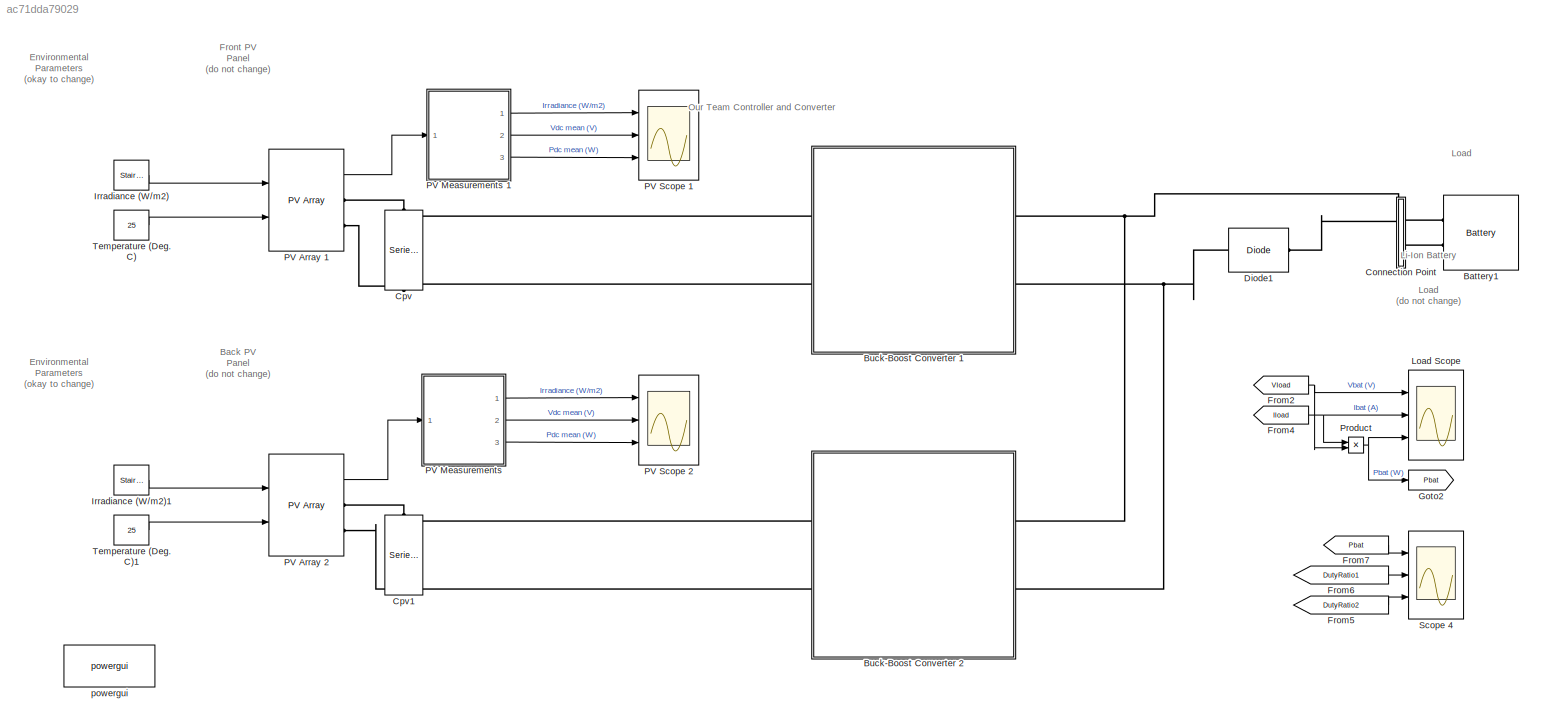
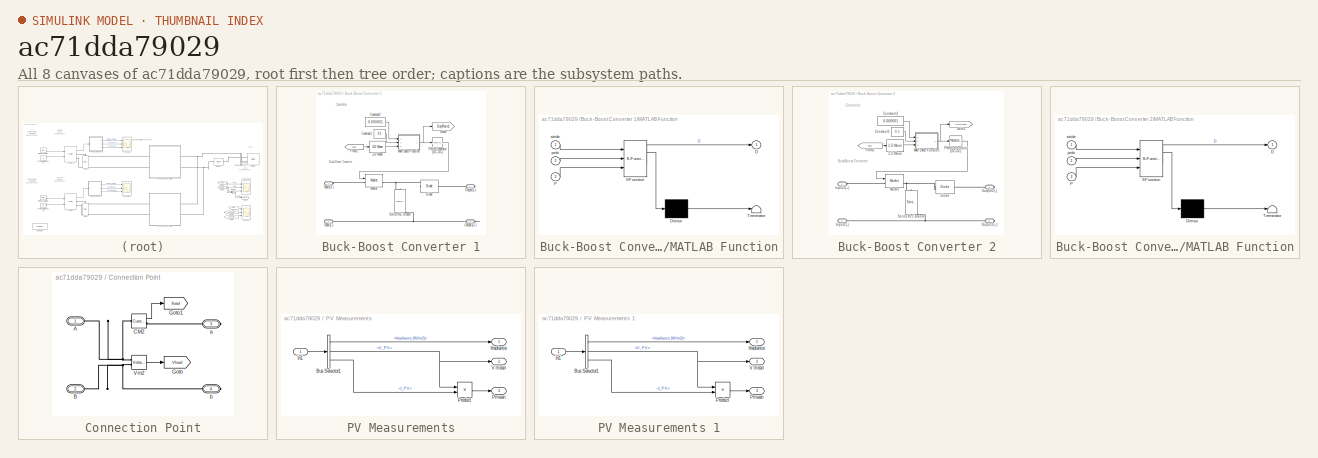
[diagram: thumbnail index - all 8 canvases of the model, root first then tree order]
MODEL slx_ac71dda79029
KIND model
CONFIG AbsTol = auto
CONFIG EnableMultiTasking = off
CONFIG FixedStep = auto
CONFIG InitFcn = %\nFc=3780;                          % PWM Carrier frequency (Hz) \nTs_Power=1/Fc/200;         % Simscape Power Systems sample time (s)\nTs_Control=20*Ts_Power;  % Inverter Control system sample time (s)
CONFIG MaxStep = auto
CONFIG MinStep = auto
CONFIG PreLoadFcn = %\nFc=3780;                          % PWM Carrier frequency (Hz) \nTs_Power=1/Fc/200;         % Simscape Power Systems sample time (s)\nTs_Control=20*Ts_Power;  % Inverter Control system sample time (s)
CONFIG RelTol = 1e-3
CONFIG SampleTimeConstraint = Unconstrained
CONFIG SolverName = FixedStepDiscrete
CONFIG StartTime = 0.0
CONFIG StopTime = 0.25
BLOCK [Reference] Battery1  REF=spsBatteryLib/Battery
  Ports = [0, 1, 0, 0, 0, 2]
  SourceBlock = spsBatteryLib/Battery
  SourceProductBaseCode = PS
  SourceType = Battery
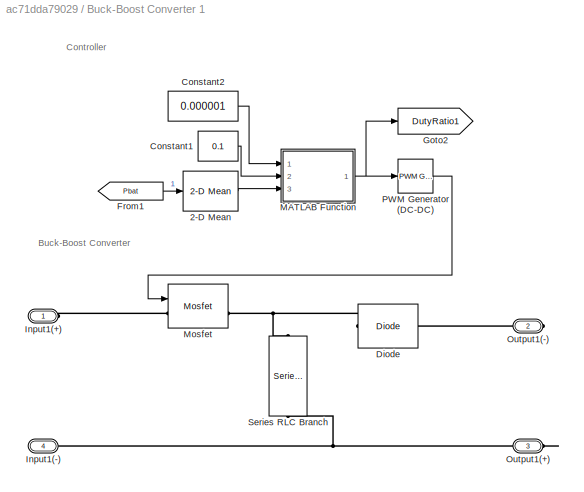
BLOCK [SubSystem] Buck-Boost Converter 1
  Ports = [0, 0, 0, 0, 0, 2, 2]
  RequestExecContextInheritance = off
BLOCK [Reference] Buck-Boost Converter 1/2-D Mean  REF=visionstatistics/2-D Mean
  Ports = [1, 1]
  SourceBlock = visionstatistics/2-D Mean
  SourceProductBaseCode = VP
  SourceType = 2-D Mean
  UserDataPersistent = on
BLOCK [Constant] Buck-Boost Converter 1/Constant1
  Value = 0.1
BLOCK [Constant] Buck-Boost Converter 1/Constant2
  Value = 0.000001
BLOCK [Reference] Buck-Boost Converter 1/Diode  REF=spsDiodeLib/Diode
  NameLocation = top
  Ports = [0, 1, 0, 0, 0, 1, 1]
  SourceBlock = spsDiodeLib/Diode
  SourceProductBaseCode = PS
  SourceType = Diode
BLOCK [From] Buck-Boost Converter 1/From1
  CloseFcn = tagdialog Close
  GotoTag = Pbat
  TagVisibility = global
BLOCK [Goto] Buck-Boost Converter 1/Goto2
  GotoTag = DutyRatio1
  TagVisibility = global
BLOCK [PMIOPort] Buck-Boost Converter 1/Input1(+)
  Side = Left
BLOCK [PMIOPort] Buck-Boost Converter 1/Input1(-)
  Port = 4
  Side = Left
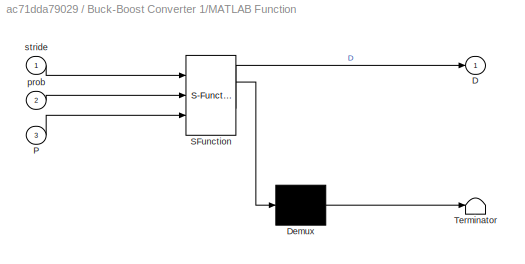
BLOCK [SubSystem] Buck-Boost Converter 1/MATLAB Function
  ErrorFcn = Stateflow.Translate.translate
  PermitHierarchicalResolution = ExplicitOnly
  Ports = [3, 1]
  RequestExecContextInheritance = off
  SFBlockType = MATLAB Function
  TreatAsAtomicUnit = on
BLOCK [Demux] Buck-Boost Converter 1/MATLAB Function/ Demux 
  Outputs = 1
  Ports = [1, 1]
BLOCK [S-Function] Buck-Boost Converter 1/MATLAB Function/ SFunction 
  EnableBusSupport = off
  FunctionName = sf_sfun
  PortCounts = [3 2]
  Ports = [3, 2]
  SFcnIsStateOwnerBlock = off
  SFunctionDeploymentMode = off
  Tag = Stateflow S-Function 2
BLOCK [Terminator] Buck-Boost Converter 1/MATLAB Function/ Terminator 
BLOCK [Outport] Buck-Boost Converter 1/MATLAB Function/D
BLOCK [Inport] Buck-Boost Converter 1/MATLAB Function/P
  Port = 3
BLOCK [Inport] Buck-Boost Converter 1/MATLAB Function/prob
  Port = 2
BLOCK [Inport] Buck-Boost Converter 1/MATLAB Function/stride
BLOCK [Reference] Buck-Boost Converter 1/Mosfet  REF=spsMosfetLib/Mosfet
  Ports = [1, 1, 0, 0, 0, 1, 1]
  SourceBlock = spsMosfetLib/Mosfet
  SourceProductBaseCode = PS
  SourceType = Mosfet
BLOCK [PMIOPort] Buck-Boost Converter 1/Output1(+)
  Port = 3
  Side = Right
BLOCK [PMIOPort] Buck-Boost Converter 1/Output1(-)
  Port = 2
  Side = Right
BLOCK [Reference] Buck-Boost Converter 1/PWM Generator (DC-DC)  REF=spsPWMGeneratorDCDCLib/PWM Generator
(DC-DC)
  NameLocation = top
  Ports = [1, 1]
  SourceBlock = spsPWMGeneratorDCDCLib/PWM Generator\n(DC-DC)
  SourceProductBaseCode = PS
  SourceType = PWM Generator (DC-DC)
BLOCK [Reference] Buck-Boost Converter 1/Series RLC Branch  REF=spsSeriesRLCBranchLib/Series RLC Branch
  NameLocation = left
  Ports = [0, 0, 0, 0, 0, 1, 1]
  SourceBlock = spsSeriesRLCBranchLib/Series RLC Branch
  SourceProductBaseCode = PS
  SourceType = Series RLC Branch
BLOCK [SubSystem] Buck-Boost Converter 2
  Ports = [0, 0, 0, 0, 0, 2, 2]
  RequestExecContextInheritance = off
BLOCK [Reference] Buck-Boost Converter 2/2-D Mean  REF=visionstatistics/2-D Mean
  Ports = [1, 1]
  SourceBlock = visionstatistics/2-D Mean
  SourceProductBaseCode = VP
  SourceType = 2-D Mean
  UserDataPersistent = on
BLOCK [Constant] Buck-Boost Converter 2/Constant2
  Value = 0.1
BLOCK [Constant] Buck-Boost Converter 2/Constant3
  Value = 0.000001
BLOCK [Reference] Buck-Boost Converter 2/Diode  REF=spsDiodeLib/Diode
  NameLocation = top
  Ports = [0, 1, 0, 0, 0, 1, 1]
  SourceBlock = spsDiodeLib/Diode
  SourceProductBaseCode = PS
  SourceType = Diode
BLOCK [From] Buck-Boost Converter 2/From1
  CloseFcn = tagdialog Close
  GotoTag = Pbat
  TagVisibility = global
BLOCK [Goto] Buck-Boost Converter 2/Goto2
  GotoTag = DutyRatio2
  TagVisibility = global
BLOCK [PMIOPort] Buck-Boost Converter 2/Input2(+)
  Side = Left
BLOCK [PMIOPort] Buck-Boost Converter 2/Input2(-)
  Port = 4
  Side = Left
BLOCK [SubSystem] Buck-Boost Converter 2/MATLAB Function
  ErrorFcn = Stateflow.Translate.translate
  PermitHierarchicalResolution = ExplicitOnly
  Ports = [3, 1]
  RequestExecContextInheritance = off
  SFBlockType = MATLAB Function
  TreatAsAtomicUnit = on
BLOCK [Demux] Buck-Boost Converter 2/MATLAB Function/ Demux 
  Outputs = 1
  Ports = [1, 1]
BLOCK [S-Function] Buck-Boost Converter 2/MATLAB Function/ SFunction 
  EnableBusSupport = off
  FunctionName = sf_sfun
  PortCounts = [3 2]
  Ports = [3, 2]
  SFcnIsStateOwnerBlock = off
  SFunctionDeploymentMode = off
  Tag = Stateflow S-Function 1
BLOCK [Terminator] Buck-Boost Converter 2/MATLAB Function/ Terminator 
BLOCK [Outport] Buck-Boost Converter 2/MATLAB Function/D
BLOCK [Inport] Buck-Boost Converter 2/MATLAB Function/P
  Port = 3
BLOCK [Inport] Buck-Boost Converter 2/MATLAB Function/prob
  Port = 2
BLOCK [Inport] Buck-Boost Converter 2/MATLAB Function/stride
BLOCK [Reference] Buck-Boost Converter 2/Mosfet  REF=spsMosfetLib/Mosfet
  Ports = [1, 1, 0, 0, 0, 1, 1]
  SourceBlock = spsMosfetLib/Mosfet
  SourceProductBaseCode = PS
  SourceType = Mosfet
BLOCK [PMIOPort] Buck-Boost Converter 2/Output2(+)
  Port = 3
  Side = Right
BLOCK [PMIOPort] Buck-Boost Converter 2/Output2(-)
  Port = 2
  Side = Right
BLOCK [Reference] Buck-Boost Converter 2/PWM Generator (DC-DC)  REF=spsPWMGeneratorDCDCLib/PWM Generator
(DC-DC)
  NameLocation = top
  Ports = [1, 1]
  SourceBlock = spsPWMGeneratorDCDCLib/PWM Generator\n(DC-DC)
  SourceProductBaseCode = PS
  SourceType = PWM Generator (DC-DC)
BLOCK [Reference] Buck-Boost Converter 2/Series RLC Branch  REF=spsSeriesRLCBranchLib/Series RLC Branch
  NameLocation = left
  Ports = [0, 0, 0, 0, 0, 1, 1]
  SourceBlock = spsSeriesRLCBranchLib/Series RLC Branch
  SourceProductBaseCode = PS
  SourceType = Series RLC Branch
BLOCK [SubSystem] Connection Point
  Ports = [0, 0, 0, 0, 0, 2, 2]
  RequestExecContextInheritance = off
BLOCK [PMIOPort] Connection Point/A
  Side = Left
BLOCK [PMIOPort] Connection Point/B
  Port = 2
  Side = Left
BLOCK [Reference] Connection Point/CM2  REF=spsCurrentMeasurementLib/Current Measurement
  Ports = [0, 1, 0, 0, 0, 1, 1]
  SourceBlock = spsCurrentMeasurementLib/Current Measurement
  SourceProductBaseCode = PS
  SourceType = Current Measurement
  UserDataPersistent = on
BLOCK [Goto] Connection Point/Goto
  GotoTag = Vload
  TagVisibility = global
BLOCK [Goto] Connection Point/Goto1
  GotoTag = Iload
  TagVisibility = global
BLOCK [Reference] Connection Point/Vm2  REF=spsVoltageMeasurementLib/Voltage Measurement
  Ports = [0, 1, 0, 0, 0, 2]
  SourceBlock = spsVoltageMeasurementLib/Voltage Measurement
  SourceProductBaseCode = PS
  SourceType = Voltage Measurement
  UserDataPersistent = on
BLOCK [PMIOPort] Connection Point/a
  Port = 3
  Side = Right
BLOCK [PMIOPort] Connection Point/b
  Port = 4
  Side = Right
BLOCK [Reference] Cpv  REF=spsSeriesRLCBranchLib/Series RLC Branch
  NameLocation = right
  Ports = [0, 0, 0, 0, 0, 1, 1]
  SourceBlock = spsSeriesRLCBranchLib/Series RLC Branch
  SourceProductBaseCode = PS
  SourceType = Series RLC Branch
BLOCK [Reference] Cpv1  REF=spsSeriesRLCBranchLib/Series RLC Branch
  NameLocation = right
  Ports = [0, 0, 0, 0, 0, 1, 1]
  SourceBlock = spsSeriesRLCBranchLib/Series RLC Branch
  SourceProductBaseCode = PS
  SourceType = Series RLC Branch
BLOCK [Reference] Diode1  REF=spsDiodeLib/Diode
  Ports = [0, 0, 0, 0, 0, 1, 1]
  SourceBlock = spsDiodeLib/Diode
  SourceProductBaseCode = PS
  SourceType = Diode
BLOCK [From] From2
  CloseFcn = tagdialog Close
  GotoTag = Vload
  TagVisibility = global
BLOCK [From] From4
  CloseFcn = tagdialog Close
  GotoTag = Iload
  TagVisibility = global
BLOCK [From] From5
  CloseFcn = tagdialog Close
  GotoTag = DutyRatio2
  TagVisibility = global
BLOCK [From] From6
  CloseFcn = tagdialog Close
  GotoTag = DutyRatio1
  TagVisibility = global
BLOCK [From] From7
  CloseFcn = tagdialog Close
  GotoTag = Pbat
  TagVisibility = global
BLOCK [Goto] Goto2
  GotoTag = Pbat
  TagVisibility = global
BLOCK [Reference] Irradiance (W//m2)  REF=spsStairGeneratorLib/Stair
Generator
  NameLocation = top
  Ports = [0, 1]
  SourceBlock = spsStairGeneratorLib/Stair\nGenerator
  SourceProductBaseCode = PS
  SourceType = Stair Generator
BLOCK [Reference] Irradiance (W//m2)1  REF=spsStairGeneratorLib/Stair
Generator
  NameLocation = top
  Ports = [0, 1]
  SourceBlock = spsStairGeneratorLib/Stair\nGenerator
  SourceProductBaseCode = PS
  SourceType = Stair Generator
BLOCK [Scope] Load Scope
  Floating = off
  NameLocation = top
  NumInputPorts = 3
  Ports = [3]
  ScopeSpecificationString = Simulink.scopes.TimeScopeBlockCfg('CurrentConfiguration', extmgr.ConfigurationSet(extmgr.Configuration('Core','General UI',true,'FigureColor',[0.501960784313725 0.501960784313725 0.501960784313725]),extmgr.Configuration('Core','Source UI',true),extmgr.Configuration('Sources','WiredSimulink',true,'DataLoggingVariableName','VIgrid','DataLoggingSaveFormat','StructureWithTime','DataLoggingDecimation',...<+3532ch>
BLOCK [Reference] PV Array 1  REF=spsPVArrayLib/PV Array
  AttributesFormatString = %<ModuleName>\n%<Nser>-module string\n%<Npar> parallel strings
  Ports = [2, 1, 0, 0, 0, 0, 2]
  SourceBlock = spsPVArrayLib/PV Array
  SourceProductBaseCode = PS
  SourceType = PV array
BLOCK [Reference] PV Array 2  REF=spsPVArrayLib/PV Array
  AttributesFormatString = %<ModuleName>\n%<Nser>-module string\n%<Npar> parallel strings
  Ports = [2, 1, 0, 0, 0, 0, 2]
  SourceBlock = spsPVArrayLib/PV Array
  SourceProductBaseCode = PS
  SourceType = PV array
BLOCK [SubSystem] PV Measurements
  Ports = [1, 3]
  RequestExecContextInheritance = off
BLOCK [SubSystem] PV Measurements 1
  Ports = [1, 3]
  RequestExecContextInheritance = off
BLOCK [BusSelector] PV Measurements 1/Bus Selector1
  OutputSignals = Irradiance (W/m2),V_PV,I_PV
  Ports = [1, 3]
BLOCK [Inport] PV Measurements 1/In1
BLOCK [Outport] PV Measurements 1/Irradiance
  VectorParamsAs1DForOutWhenUnconnected = off
BLOCK [Outport] PV Measurements 1/Pmean
  Port = 3
  VectorParamsAs1DForOutWhenUnconnected = off
BLOCK [Product] PV Measurements 1/Product
  Ports = [2, 1]
BLOCK [Outport] PV Measurements 1/V mean
  Port = 2
  VectorParamsAs1DForOutWhenUnconnected = off
BLOCK [BusSelector] PV Measurements/Bus Selector1
  OutputSignals = Irradiance (W/m2),V_PV,I_PV
  Ports = [1, 3]
BLOCK [Inport] PV Measurements/In1
BLOCK [Outport] PV Measurements/Irradiance
  VectorParamsAs1DForOutWhenUnconnected = off
BLOCK [Outport] PV Measurements/Pmean
  Port = 3
  VectorParamsAs1DForOutWhenUnconnected = off
BLOCK [Product] PV Measurements/Product
  Ports = [2, 1]
BLOCK [Outport] PV Measurements/V mean
  Port = 2
  VectorParamsAs1DForOutWhenUnconnected = off
BLOCK [Scope] PV Scope 1
  Floating = off
  NameLocation = top
  NumInputPorts = 3
  Ports = [3]
  ScopeSpecificationString = Simulink.scopes.TimeScopeBlockCfg('CurrentConfiguration', extmgr.ConfigurationSet(extmgr.Configuration('Core','General UI',true,'FigureColor',[0.501960784313725 0.501960784313725 0.501960784313725]),extmgr.Configuration('Core','Source UI',true),extmgr.Configuration('Sources','WiredSimulink',true,'DataLoggingVariableName','ScopeData1','DataLoggingSaveFormat','StructureWithTime','DataLoggingDecimati...<+3647ch>
BLOCK [Scope] PV Scope 2
  Floating = off
  NameLocation = top
  NumInputPorts = 3
  Ports = [3]
  ScopeSpecificationString = Simulink.scopes.TimeScopeBlockCfg('CurrentConfiguration', extmgr.ConfigurationSet(extmgr.Configuration('Core','General UI',true,'FigureColor',[0.501960784313725 0.501960784313725 0.501960784313725]),extmgr.Configuration('Core','Source UI',true),extmgr.Configuration('Sources','WiredSimulink',true,'DataLoggingVariableName','ScopeData1','DataLoggingSaveFormat','StructureWithTime','DataLoggingDecimati...<+3642ch>
BLOCK [Product] Product
  Ports = [2, 1]
BLOCK [Scope] Scope 4
  Floating = off
  NameLocation = top
  NumInputPorts = 3
  Ports = [3]
  ScopeSpecificationString = Simulink.scopes.TimeScopeBlockCfg('CurrentConfiguration', extmgr.ConfigurationSet(extmgr.Configuration('Core','General UI',true,'FigureColor',[0.501960784313725 0.501960784313725 0.501960784313725]),extmgr.Configuration('Core','Source UI',true),extmgr.Configuration('Sources','WiredSimulink',true,'DataLoggingVariableName','ScopeData1','DataLoggingSaveFormat','StructureWithTime','DataLoggingDecimati...<+3585ch>
BLOCK [Constant] Temperature (Deg. C)
  Value = 25
BLOCK [Constant] Temperature (Deg. C)1
  Value = 25
BLOCK [Reference] powergui  REF=spspowerguiLib/powergui
  Ports = []
  Priority = 1
  SourceBlock = spspowerguiLib/powergui
  SourceProductBaseCode = PS
  SourceType = PSB option menu block
ANNOTATION (root): Load
ANNOTATION (root): Back PV Panel (do not change)
ANNOTATION (root): Front PV Panel (do not change)
ANNOTATION (root): Li-Ion Battery Load (do not change)
ANNOTATION (root): Our Team Controller and Converter
ANNOTATION (root): Environmental Parameters (okay to change)
ANNOTATION Buck-Boost Converter 1: Buck-Boost Converter
ANNOTATION Buck-Boost Converter 1: Controller
ANNOTATION Buck-Boost Converter 2: Buck-Boost Converter
ANNOTATION Buck-Boost Converter 2: Controller
LINE Buck-Boost Converter 1/2-D Mean:1 -> Buck-Boost Converter 1/MATLAB Function:3
LINE Buck-Boost Converter 1/Constant1:1 -> Buck-Boost Converter 1/MATLAB Function:2
LINE Buck-Boost Converter 1/Constant2:1 -> Buck-Boost Converter 1/MATLAB Function:1
LINE Buck-Boost Converter 1/From1:1 -> Buck-Boost Converter 1/2-D Mean:1
NET Buck-Boost Converter 1/MATLAB Function:1 -> Buck-Boost Converter 1/Goto2:1, Buck-Boost Converter 1/PWM Generator (DC-DC):1
LINE Buck-Boost Converter 1/PWM Generator (DC-DC):1 -> Buck-Boost Converter 1/Mosfet:1
LINE Buck-Boost Converter 2/2-D Mean:1 -> Buck-Boost Converter 2/MATLAB Function:3
LINE Buck-Boost Converter 2/Constant2:1 -> Buck-Boost Converter 2/MATLAB Function:2
LINE Buck-Boost Converter 2/Constant3:1 -> Buck-Boost Converter 2/MATLAB Function:1
LINE Buck-Boost Converter 2/From1:1 -> Buck-Boost Converter 2/2-D Mean:1
NET Buck-Boost Converter 2/MATLAB Function:1 -> Buck-Boost Converter 2/Goto2:1, Buck-Boost Converter 2/PWM Generator (DC-DC):1
LINE Buck-Boost Converter 2/PWM Generator (DC-DC):1 -> Buck-Boost Converter 2/Mosfet:1
LINE Connection Point/CM2:1 -> Connection Point/Goto1:1
LINE Connection Point/Vm2:1 -> Connection Point/Goto:1
NET From2:1 -> Load Scope:1, Product:2
NET From4:1 -> Load Scope:2, Product:1
LINE From5:1 -> Scope 4:3
LINE From6:1 -> Scope 4:2
LINE From7:1 -> Scope 4:1
LINE Irradiance (W//m2)1:1 -> PV Array 2:1
LINE Irradiance (W//m2):1 -> PV Array 1:1
LINE PV Array 1:1 -> PV Measurements 1:1
LINE PV Array 2:1 -> PV Measurements:1
LINE PV Measurements 1/Bus Selector1:1 -> PV Measurements 1/Irradiance:1
NET PV Measurements 1/Bus Selector1:2 -> PV Measurements 1/Product:1, PV Measurements 1/V mean:1
LINE PV Measurements 1/Bus Selector1:3 -> PV Measurements 1/Product:2
LINE PV Measurements 1/In1:1 -> PV Measurements 1/Bus Selector1:1
LINE PV Measurements 1/Product:1 -> PV Measurements 1/Pmean:1
LINE PV Measurements 1:1 -> PV Scope 1:1
LINE PV Measurements 1:2 -> PV Scope 1:2
LINE PV Measurements 1:3 -> PV Scope 1:3
LINE PV Measurements/Bus Selector1:1 -> PV Measurements/Irradiance:1
NET PV Measurements/Bus Selector1:2 -> PV Measurements/Product:1, PV Measurements/V mean:1
LINE PV Measurements/Bus Selector1:3 -> PV Measurements/Product:2
LINE PV Measurements/In1:1 -> PV Measurements/Bus Selector1:1
LINE PV Measurements/Product:1 -> PV Measurements/Pmean:1
LINE PV Measurements:1 -> PV Scope 2:1
LINE PV Measurements:2 -> PV Scope 2:2
LINE PV Measurements:3 -> PV Scope 2:3
NET Product:1 -> Goto2:1, Load Scope:3
LINE Temperature (Deg. C)1:1 -> PV Array 2:2
LINE Temperature (Deg. C):1 -> PV Array 1:2
PLINE Battery1:LConn1 -- Connection Point:RConn1
PLINE Battery1:LConn2 -- Connection Point:RConn2
PLINE Buck-Boost Converter 1/Diode:LConn1 -- Buck-Boost Converter 1/Output1(-):RConn1
PNET net1: Buck-Boost Converter 1/Diode:RConn1 -- Buck-Boost Converter 1/Mosfet:RConn1 -- Buck-Boost Converter 1/Series RLC Branch:LConn1
PLINE Buck-Boost Converter 1/Input1(+):RConn1 -- Buck-Boost Converter 1/Mosfet:LConn1
PNET net2: Buck-Boost Converter 1/Input1(-):RConn1 -- Buck-Boost Converter 1/Output1(+):RConn1 -- Buck-Boost Converter 1/Series RLC Branch:RConn1
PNET net3: Buck-Boost Converter 1:LConn1 -- Cpv:LConn1 -- PV Array 1:RConn1
PNET net4: Buck-Boost Converter 1:LConn2 -- Cpv:RConn1 -- PV Array 1:RConn2
PNET net5: Buck-Boost Converter 1:RConn1 -- Buck-Boost Converter 2:RConn1 -- Connection Point:LConn2
PNET net6: Buck-Boost Converter 1:RConn2 -- Buck-Boost Converter 2:RConn2 -- Diode1:LConn1
PLINE Buck-Boost Converter 2/Diode:LConn1 -- Buck-Boost Converter 2/Output2(-):RConn1
PNET net7: Buck-Boost Converter 2/Diode:RConn1 -- Buck-Boost Converter 2/Mosfet:RConn1 -- Buck-Boost Converter 2/Series RLC Branch:LConn1
PLINE Buck-Boost Converter 2/Input2(+):RConn1 -- Buck-Boost Converter 2/Mosfet:LConn1
PNET net8: Buck-Boost Converter 2/Input2(-):RConn1 -- Buck-Boost Converter 2/Output2(+):RConn1 -- Buck-Boost Converter 2/Series RLC Branch:RConn1
PNET net9: Buck-Boost Converter 2:LConn1 -- Cpv1:LConn1 -- PV Array 2:RConn1
PNET net10: Buck-Boost Converter 2:LConn2 -- Cpv1:RConn1 -- PV Array 2:RConn2
PNET net11: Connection Point/A:RConn1 -- Connection Point/CM2:LConn1 -- Connection Point/Vm2:LConn1
PNET net12: Connection Point/B:RConn1 -- Connection Point/Vm2:LConn2 -- Connection Point/b:RConn1
PLINE Connection Point/CM2:RConn1 -- Connection Point/a:RConn1
PLINE Connection Point:LConn1 -- Diode1:RConn1
note: NET lines group one-source signal fan-out (src -> all destinations, sorted); 1:1 wires keep LINE; PNET lines group multi-terminal physical nets as a canonical sorted terminal list (undirected conserving connections); 2-terminal nets keep the pairwise PLINE form
CHART Buck-Boost Converter 2/MATLAB Function states=1 transitions=1
  STATE_LABEL 'eML_blk_kernel()'
  STATE_LABEL 'SCRIPT:\nfunction D = fcn(stride, prob, P)\nDinit = 0.786;\ndeltaD = stride;\npersistent Pold Dold LDD;\nif isempty(Pold)\n    Pold = 0;\n    Dold = Dinit;\n    LDD = 0;\nelse\nend\nD = Dold;\ndP = P - Pold;\nif dP ~= 0\n    randnum = rand; \n    if dP < 0\n        if (LDD > 0 & randnum > prob) | (LDD < 0 & randnum < prob)\n            D = Dold - deltaD;\n            LDD = -1;\n        else\n            D = Dold + de...<+320ch>'
CHART Buck-Boost Converter 1/MATLAB Function states=1 transitions=1
  STATE_LABEL 'eML_blk_kernel()'
  STATE_LABEL 'SCRIPT:\nfunction D = fcn(stride, prob, P)\nDinit = 0.749;\ndeltaD = stride;\npersistent Pold Dold LDD;\nif isempty(Pold)\n    Pold = 0;\n    Dold = Dinit;\n    LDD = 0;\nelse\nend\nD = Dold;\ndP = P - Pold;\nif dP ~= 0\n    randnum = rand; \n    if dP < 0\n        if (LDD > 0 & randnum > prob) | (LDD < 0 & randnum < prob)\n            D = Dold - deltaD;\n            LDD = -1;\n        else\n            D = Dold + de...<+320ch>'
CHART  states=0 transitions=0
CHART  states=0 transitions=0
